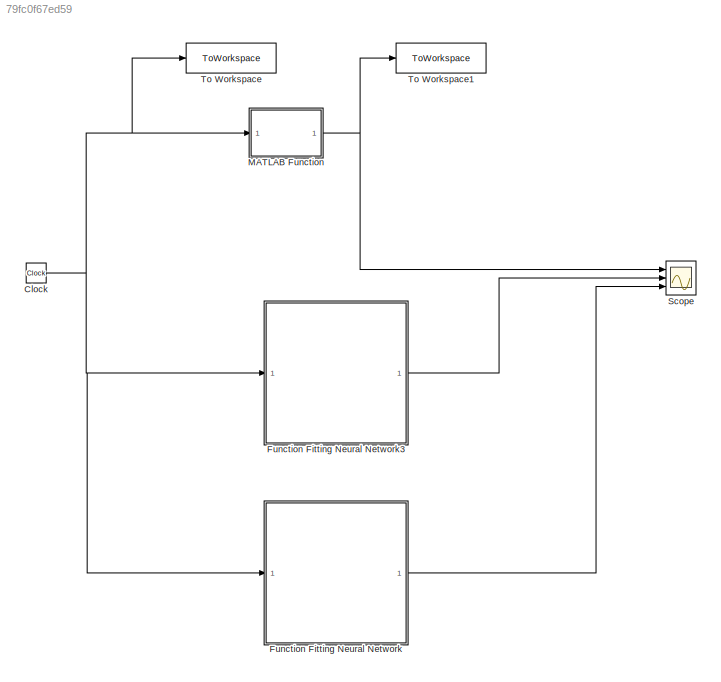
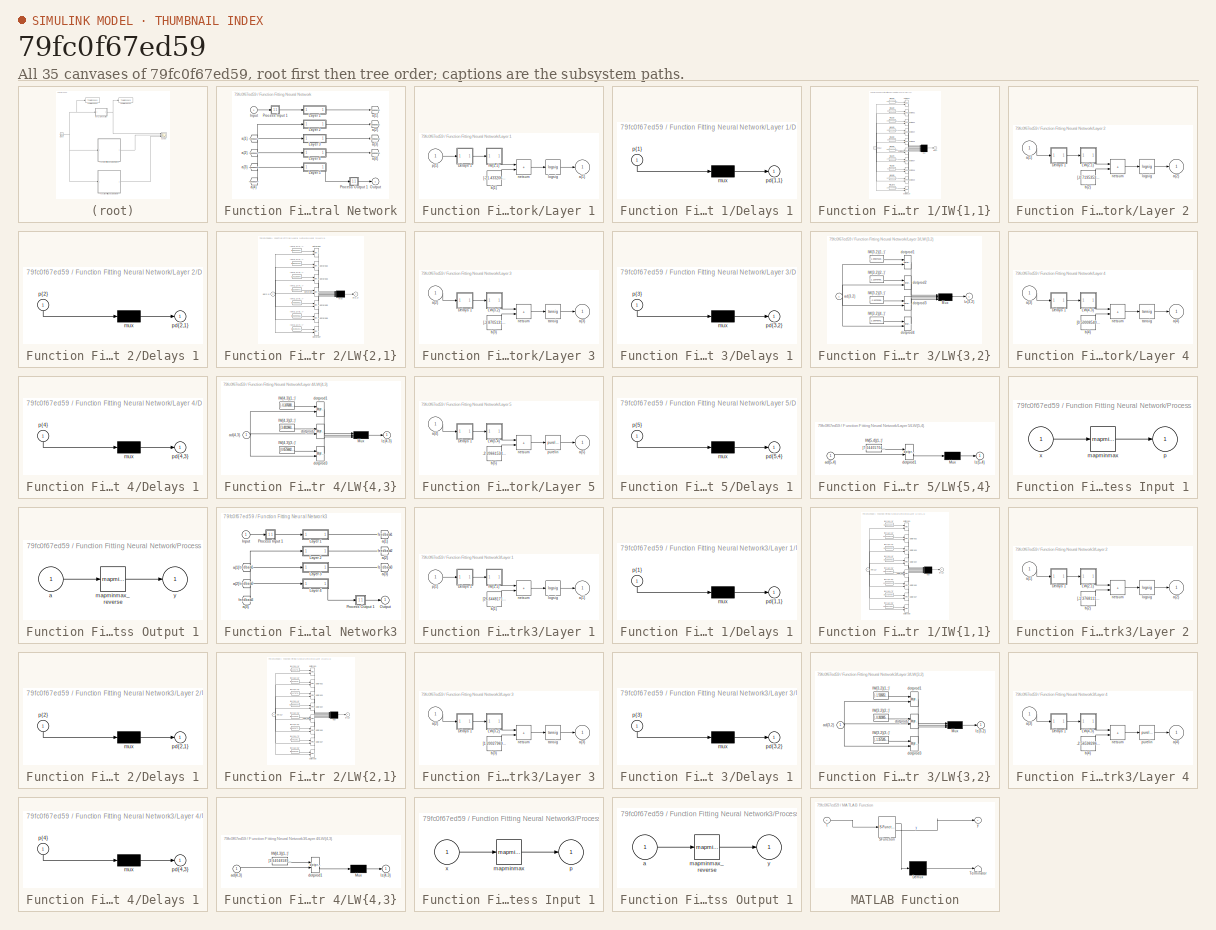
[diagram: thumbnail index - all 35 canvases of the model, root first then tree order]
MODEL slx_79fc0f67ed59
KIND model
CONFIG AbsTol = auto
CONFIG EnableMultiTasking = off
CONFIG FixedStep = 0.01
CONFIG MaxStep = auto
CONFIG MinStep = auto
CONFIG RelTol = 1e-3
CONFIG SampleTimeConstraint = Unconstrained
CONFIG SolverName = ode4
CONFIG StartTime = 0.0
CONFIG StopTime = 20.0
BLOCK [Clock] Clock
BLOCK [SubSystem] Function Fitting Neural Network
  Ports = [1, 1]
  RequestExecContextInheritance = off
BLOCK [From] Function Fitting Neural Network/ a{1} 
  GotoTag = feedback1
BLOCK [From] Function Fitting Neural Network/ a{2} 
  GotoTag = feedback2
BLOCK [From] Function Fitting Neural Network/ a{3} 
  GotoTag = feedback3
BLOCK [From] Function Fitting Neural Network/ a{4} 
  GotoTag = feedback4
BLOCK [Inport] Function Fitting Neural Network/Input
  PortDimensions = 1
BLOCK [SubSystem] Function Fitting Neural Network/Layer 1
  Ports = [1, 1]
  RequestExecContextInheritance = off
BLOCK [SubSystem] Function Fitting Neural Network/Layer 1/Delays 1
  Ports = [1, 1]
  RequestExecContextInheritance = off
BLOCK [Mux] Function Fitting Neural Network/Layer 1/Delays 1/mux
  Inputs = 1
  Ports = [1, 1]
BLOCK [Outport] Function Fitting Neural Network/Layer 1/Delays 1/pd{1,1}
BLOCK [Inport] Function Fitting Neural Network/Layer 1/Delays 1/p{1}
  NameLocation = left
  PortDimensions = 1
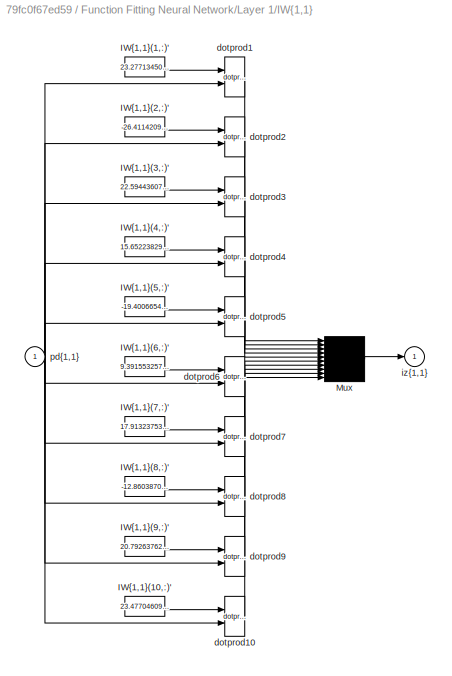
BLOCK [SubSystem] Function Fitting Neural Network/Layer 1/IW{1,1}
  Ports = [1, 1]
  RequestExecContextInheritance = off
BLOCK [Constant] Function Fitting Neural Network/Layer 1/IW{1,1}/IW{1,1}(1,:)'
  Value = 23.277134502735155052732807234860956668853759765625
BLOCK [Constant] Function Fitting Neural Network/Layer 1/IW{1,1}/IW{1,1}(10,:)'
  Value = 23.47704609205544556971290148794651031494140625
BLOCK [Constant] Function Fitting Neural Network/Layer 1/IW{1,1}/IW{1,1}(2,:)'
  Value = -26.411420986498800544950427138246595859527587890625
BLOCK [Constant] Function Fitting Neural Network/Layer 1/IW{1,1}/IW{1,1}(3,:)'
  Value = 22.594436071932914700255423667840659618377685546875
BLOCK [Constant] Function Fitting Neural Network/Layer 1/IW{1,1}/IW{1,1}(4,:)'
  Value = 15.6522382951561898067893707775510847568511962890625
BLOCK [Constant] Function Fitting Neural Network/Layer 1/IW{1,1}/IW{1,1}(5,:)'
  Value = -19.400665441327429761031453381292521953582763671875
BLOCK [Constant] Function Fitting Neural Network/Layer 1/IW{1,1}/IW{1,1}(6,:)'
  Value = 9.3915532570011226454198549618013203144073486328125
BLOCK [Constant] Function Fitting Neural Network/Layer 1/IW{1,1}/IW{1,1}(7,:)'
  Value = 17.913237534890271263066097162663936614990234375
BLOCK [Constant] Function Fitting Neural Network/Layer 1/IW{1,1}/IW{1,1}(8,:)'
  Value = -12.8603870962544295508678260375745594501495361328125
BLOCK [Constant] Function Fitting Neural Network/Layer 1/IW{1,1}/IW{1,1}(9,:)'
  Value = 20.792637620225196570800108020193874835968017578125
BLOCK [Mux] Function Fitting Neural Network/Layer 1/IW{1,1}/Mux
  Inputs = 10
  Ports = [10, 1]
BLOCK [Reference] Function Fitting Neural Network/Layer 1/IW{1,1}/dotprod1  REF=neural/Weight Functions/dotprod
  Ports = [2, 1]
  SourceBlock = neural/Weight Functions/dotprod
  SourceProductBaseCode = NN
  SourceType = DOTPROD
BLOCK [Reference] Function Fitting Neural Network/Layer 1/IW{1,1}/dotprod10  REF=neural/Weight Functions/dotprod
  Ports = [2, 1]
  SourceBlock = neural/Weight Functions/dotprod
  SourceProductBaseCode = NN
  SourceType = DOTPROD
BLOCK [Reference] Function Fitting Neural Network/Layer 1/IW{1,1}/dotprod2  REF=neural/Weight Functions/dotprod
  Ports = [2, 1]
  SourceBlock = neural/Weight Functions/dotprod
  SourceProductBaseCode = NN
  SourceType = DOTPROD
BLOCK [Reference] Function Fitting Neural Network/Layer 1/IW{1,1}/dotprod3  REF=neural/Weight Functions/dotprod
  Ports = [2, 1]
  SourceBlock = neural/Weight Functions/dotprod
  SourceProductBaseCode = NN
  SourceType = DOTPROD
BLOCK [Reference] Function Fitting Neural Network/Layer 1/IW{1,1}/dotprod4  REF=neural/Weight Functions/dotprod
  Ports = [2, 1]
  SourceBlock = neural/Weight Functions/dotprod
  SourceProductBaseCode = NN
  SourceType = DOTPROD
BLOCK [Reference] Function Fitting Neural Network/Layer 1/IW{1,1}/dotprod5  REF=neural/Weight Functions/dotprod
  Ports = [2, 1]
  SourceBlock = neural/Weight Functions/dotprod
  SourceProductBaseCode = NN
  SourceType = DOTPROD
BLOCK [Reference] Function Fitting Neural Network/Layer 1/IW{1,1}/dotprod6  REF=neural/Weight Functions/dotprod
  Ports = [2, 1]
  SourceBlock = neural/Weight Functions/dotprod
  SourceProductBaseCode = NN
  SourceType = DOTPROD
BLOCK [Reference] Function Fitting Neural Network/Layer 1/IW{1,1}/dotprod7  REF=neural/Weight Functions/dotprod
  Ports = [2, 1]
  SourceBlock = neural/Weight Functions/dotprod
  SourceProductBaseCode = NN
  SourceType = DOTPROD
BLOCK [Reference] Function Fitting Neural Network/Layer 1/IW{1,1}/dotprod8  REF=neural/Weight Functions/dotprod
  Ports = [2, 1]
  SourceBlock = neural/Weight Functions/dotprod
  SourceProductBaseCode = NN
  SourceType = DOTPROD
BLOCK [Reference] Function Fitting Neural Network/Layer 1/IW{1,1}/dotprod9  REF=neural/Weight Functions/dotprod
  Ports = [2, 1]
  SourceBlock = neural/Weight Functions/dotprod
  SourceProductBaseCode = NN
  SourceType = DOTPROD
BLOCK [Outport] Function Fitting Neural Network/Layer 1/IW{1,1}/iz{1,1}
BLOCK [Inport] Function Fitting Neural Network/Layer 1/IW{1,1}/pd{1,1}
  PortDimensions = 1
BLOCK [Outport] Function Fitting Neural Network/Layer 1/a{1}
  InitialOutput = [0;0;0;0;0;0;0;0;0;0]
BLOCK [Constant] Function Fitting Neural Network/Layer 1/b{1}
  Value = [-21.433206920465398326314243604429066181182861328125;15.6837883782257438980423103203065693378448486328125;-10.441193294885959375051243114285171031951904296875;-1.1830600892865652529195585884735919535160064697265625;-1.0612586853796608377109578214003704488277435302734375;1.337146372410768169203265642863698303699493408203125;10.780108392073611156547485734336078166961669921875;-9.2026417353347991223...<+132ch>
BLOCK [Reference] Function Fitting Neural Network/Layer 1/logsig  REF=neural/Transfer Functions/logsig
  Ports = [1, 1]
  SourceBlock = neural/Transfer Functions/logsig
  SourceProductBaseCode = NN
  SourceType = LOGSIG
BLOCK [Sum] Function Fitting Neural Network/Layer 1/netsum
  IconShape = rectangular
  InputSameDT = on
  Inputs = 2
  OutDataTypeStr = Inherit: Same as first input
  Ports = [2, 1]
  SaturateOnIntegerOverflow = on
BLOCK [Inport] Function Fitting Neural Network/Layer 1/p{1}
  PortDimensions = 1
BLOCK [SubSystem] Function Fitting Neural Network/Layer 2
  Ports = [1, 1]
  RequestExecContextInheritance = off
BLOCK [SubSystem] Function Fitting Neural Network/Layer 2/Delays 1
  Ports = [1, 1]
  RequestExecContextInheritance = off
BLOCK [Mux] Function Fitting Neural Network/Layer 2/Delays 1/mux
  Inputs = 1
  Ports = [1, 1]
BLOCK [Outport] Function Fitting Neural Network/Layer 2/Delays 1/pd{2,1}
BLOCK [Inport] Function Fitting Neural Network/Layer 2/Delays 1/p{2}
  NameLocation = left
  PortDimensions = 10
BLOCK [SubSystem] Function Fitting Neural Network/Layer 2/LW{2,1}
  Ports = [1, 1]
  RequestExecContextInheritance = off
BLOCK [Constant] Function Fitting Neural Network/Layer 2/LW{2,1}/IW{2,1}(1,:)'
  Value = [2.350421578040545522725324190105311572551727294921875;1.451300580397248740638360686716623604297637939453125;-0.9199507030625111436705765299848280847072601318359375;1.6758342343024861254008328614872880280017852783203125;-3.283599931718857778406572833773680031299591064453125;-5.16152741757049238202625929261557757854461669921875;0.1757685202127516055359279789627180434763431549072265625;-3.7149128965...<+153ch>
BLOCK [Constant] Function Fitting Neural Network/Layer 2/LW{2,1}/IW{2,1}(2,:)'
  Value = [1.8823279418081992897526788510731421411037445068359375;-0.465857894824131257838217834432725794613361358642578125;-4.41069375938105157075597162474878132343292236328125;8.8700695186918192547409489634446799755096435546875;0.05306674711865032312285705984322703443467617034912109375;0.2269208508768193188753770073162741027772426605224609375;2.280590611213982210614403811632655560970306396484375;2.6150272...<+155ch>
BLOCK [Constant] Function Fitting Neural Network/Layer 2/LW{2,1}/IW{2,1}(3,:)'
  Value = [1.7018606421207351786506478674709796905517578125;-1.5985857921278887605609497768455184996128082275390625;-2.035847173659039999193964831647463142871856689453125;2.88218842608853886844144653878174722194671630859375;-6.11115874472133402406370805692858994007110595703125;1.909986252901814562932258922955952584743499755859375;-2.723554817881005174484698727610521018505096435546875;1.600627384397439900709...<+137ch>
BLOCK [Constant] Function Fitting Neural Network/Layer 2/LW{2,1}/IW{2,1}(4,:)'
  Value = [3.815556725800062221054531619301997125148773193359375;-3.1644676790149066647472864133305847644805908203125;-1.183708955574640508956463236245326697826385498046875;-2.254320689829345969457108367350883781909942626953125;-7.46332693547167647096785003668628633022308349609375;-2.09808207678152758290934798424132168292999267578125;-9.0803722538828264276844492997042834758758544921875;13.745482627225156235...<+142ch>
BLOCK [Constant] Function Fitting Neural Network/Layer 2/LW{2,1}/IW{2,1}(5,:)'
  Value = [3.7688900233720321608643644140101969242095947265625;-0.6403914617748249771267410324071533977985382080078125;0.856319213967454917479926734813489019870758056640625;1.8313975346333943861054649460129439830780029296875;-2.005454282743410754363821979495696723461151123046875;-4.38766498924002146253542377962730824947357177734375;-3.564828752906631148533733721706084907054901123046875;-6.913747809628194573...<+141ch>
BLOCK [Constant] Function Fitting Neural Network/Layer 2/LW{2,1}/IW{2,1}(6,:)'
  Value = [0.408909667377094498963430169169441796839237213134765625;4.83938285358232889166174572892487049102783203125;-2.6370027229920918188099676626734435558319091796875;-0.7484871870729417064893596034380607306957244873046875;1.8995317572143239903681433133897371590137481689453125;-1.3350229659524026626371551174088381230831146240234375;0.7370545782960593594879128431784920394420623779296875;3.234185393291054...<+138ch>
BLOCK [Constant] Function Fitting Neural Network/Layer 2/LW{2,1}/IW{2,1}(7,:)'
  Value = [1.8128121143816311455765344362589530646800994873046875;2.317506185920605421557638692320324480533599853515625;0.54450855427327748969901222153566777706146240234375;2.570286684316660075211302682873792946338653564453125;-1.297872213126778806469019400537945330142974853515625;-1.0982240107115861516007271347916685044765472412109375;12.4361703440751423244137185974977910518646240234375;6.65922643595589036...<+141ch>
BLOCK [Mux] Function Fitting Neural Network/Layer 2/LW{2,1}/Mux
  Inputs = 7
  Ports = [7, 1]
BLOCK [Inport] Function Fitting Neural Network/Layer 2/LW{2,1}/ad{2,1}
  PortDimensions = 10
BLOCK [Reference] Function Fitting Neural Network/Layer 2/LW{2,1}/dotprod1  REF=neural/Weight Functions/dotprod
  Ports = [2, 1]
  SourceBlock = neural/Weight Functions/dotprod
  SourceProductBaseCode = NN
  SourceType = DOTPROD
BLOCK [Reference] Function Fitting Neural Network/Layer 2/LW{2,1}/dotprod2  REF=neural/Weight Functions/dotprod
  Ports = [2, 1]
  SourceBlock = neural/Weight Functions/dotprod
  SourceProductBaseCode = NN
  SourceType = DOTPROD
BLOCK [Reference] Function Fitting Neural Network/Layer 2/LW{2,1}/dotprod3  REF=neural/Weight Functions/dotprod
  Ports = [2, 1]
  SourceBlock = neural/Weight Functions/dotprod
  SourceProductBaseCode = NN
  SourceType = DOTPROD
BLOCK [Reference] Function Fitting Neural Network/Layer 2/LW{2,1}/dotprod4  REF=neural/Weight Functions/dotprod
  Ports = [2, 1]
  SourceBlock = neural/Weight Functions/dotprod
  SourceProductBaseCode = NN
  SourceType = DOTPROD
BLOCK [Reference] Function Fitting Neural Network/Layer 2/LW{2,1}/dotprod5  REF=neural/Weight Functions/dotprod
  Ports = [2, 1]
  SourceBlock = neural/Weight Functions/dotprod
  SourceProductBaseCode = NN
  SourceType = DOTPROD
BLOCK [Reference] Function Fitting Neural Network/Layer 2/LW{2,1}/dotprod6  REF=neural/Weight Functions/dotprod
  Ports = [2, 1]
  SourceBlock = neural/Weight Functions/dotprod
  SourceProductBaseCode = NN
  SourceType = DOTPROD
BLOCK [Reference] Function Fitting Neural Network/Layer 2/LW{2,1}/dotprod7  REF=neural/Weight Functions/dotprod
  Ports = [2, 1]
  SourceBlock = neural/Weight Functions/dotprod
  SourceProductBaseCode = NN
  SourceType = DOTPROD
BLOCK [Outport] Function Fitting Neural Network/Layer 2/LW{2,1}/lz{2,1}
BLOCK [Inport] Function Fitting Neural Network/Layer 2/a{1} 
  PortDimensions = 10
BLOCK [Outport] Function Fitting Neural Network/Layer 2/a{2}
  InitialOutput = [0;0;0;0;0;0;0]
BLOCK [Constant] Function Fitting Neural Network/Layer 2/b{2}
  Value = [-0.71953533617200360339438702794723212718963623046875;-6.91133706971976291555392890586517751216888427734375;-0.73244147335433129608617264239001087844371795654296875;-4.82320986915466232147764458204619586467742919921875;-1.6061604830402809174216827159398235380649566650390625;-2.627959854707784703720108154811896383762359619140625;-1.9369343382109269757762604058370925486087799072265625]
BLOCK [Reference] Function Fitting Neural Network/Layer 2/logsig  REF=neural/Transfer Functions/logsig
  Ports = [1, 1]
  SourceBlock = neural/Transfer Functions/logsig
  SourceProductBaseCode = NN
  SourceType = LOGSIG
BLOCK [Sum] Function Fitting Neural Network/Layer 2/netsum
  IconShape = rectangular
  InputSameDT = on
  Inputs = 2
  OutDataTypeStr = Inherit: Same as first input
  Ports = [2, 1]
  SaturateOnIntegerOverflow = on
BLOCK [SubSystem] Function Fitting Neural Network/Layer 3
  Ports = [1, 1]
  RequestExecContextInheritance = off
BLOCK [SubSystem] Function Fitting Neural Network/Layer 3/Delays 1
  Ports = [1, 1]
  RequestExecContextInheritance = off
BLOCK [Mux] Function Fitting Neural Network/Layer 3/Delays 1/mux
  Inputs = 1
  Ports = [1, 1]
BLOCK [Outport] Function Fitting Neural Network/Layer 3/Delays 1/pd{3,2}
BLOCK [Inport] Function Fitting Neural Network/Layer 3/Delays 1/p{3}
  NameLocation = left
  PortDimensions = 7
BLOCK [SubSystem] Function Fitting Neural Network/Layer 3/LW{3,2}
  Ports = [1, 1]
  RequestExecContextInheritance = off
BLOCK [Constant] Function Fitting Neural Network/Layer 3/LW{3,2}/IW{3,2}(1,:)'
  Value = [1.89807628564586661212842955137602984905242919921875;-0.62822601878224204607903402575175277888774871826171875;-0.5013404643207923783165824715979397296905517578125;2.06706512427990585223369635059498250484466552734375;-7.175751919448462246009512455202639102935791015625;-1.3982043095720284586747084176749922335147857666015625;-2.178481549686031915058492813841439783573150634765625]
BLOCK [Constant] Function Fitting Neural Network/Layer 3/LW{3,2}/IW{3,2}(2,:)'
  Value = [1.1267876542397825545549494563601911067962646484375;-0.608781874057461980243033394799567759037017822265625;-0.4399344496084582889494640767225064337253570556640625;-0.0966156141603600471245982816981268115341663360595703125;-2.391850368547941751984353686566464602947235107421875;-0.43562794862502818293847894892678596079349517822265625;-1.1655204675205965703099764141370542347431182861328125]
BLOCK [Constant] Function Fitting Neural Network/Layer 3/LW{3,2}/IW{3,2}(3,:)'
  Value = [-2.607529921326908972645242101862095296382904052734375;-3.551751910479796325859069838770665228366851806640625;1.504745368587204978894078521989285945892333984375;6.37905401880589462138004819280467927455902099609375;-1.42887948968418410089498138404451310634613037109375;0.271262628598654298439640797369065694510936737060546875;2.22431879729682346891195265925489366054534912109375]
BLOCK [Constant] Function Fitting Neural Network/Layer 3/LW{3,2}/IW{3,2}(4,:)'
  Value = [2.29646642482035812093954518786631524562835693359375;1.85441777027991339110712942783720791339874267578125;1.41986906190736750232872509513981640338897705078125;-7.195446385555936075206773239187896251678466796875;-3.444088911829766175287659280002117156982421875;2.152738735825248550526112012448720633983612060546875;2.0395757916297849732245595077984035015106201171875]
BLOCK [Mux] Function Fitting Neural Network/Layer 3/LW{3,2}/Mux
  Ports = [4, 1]
BLOCK [Inport] Function Fitting Neural Network/Layer 3/LW{3,2}/ad{3,2}
  PortDimensions = 7
BLOCK [Reference] Function Fitting Neural Network/Layer 3/LW{3,2}/dotprod1  REF=neural/Weight Functions/dotprod
  Ports = [2, 1]
  SourceBlock = neural/Weight Functions/dotprod
  SourceProductBaseCode = NN
  SourceType = DOTPROD
BLOCK [Reference] Function Fitting Neural Network/Layer 3/LW{3,2}/dotprod2  REF=neural/Weight Functions/dotprod
  Ports = [2, 1]
  SourceBlock = neural/Weight Functions/dotprod
  SourceProductBaseCode = NN
  SourceType = DOTPROD
BLOCK [Reference] Function Fitting Neural Network/Layer 3/LW{3,2}/dotprod3  REF=neural/Weight Functions/dotprod
  Ports = [2, 1]
  SourceBlock = neural/Weight Functions/dotprod
  SourceProductBaseCode = NN
  SourceType = DOTPROD
BLOCK [Reference] Function Fitting Neural Network/Layer 3/LW{3,2}/dotprod4  REF=neural/Weight Functions/dotprod
  Ports = [2, 1]
  SourceBlock = neural/Weight Functions/dotprod
  SourceProductBaseCode = NN
  SourceType = DOTPROD
BLOCK [Outport] Function Fitting Neural Network/Layer 3/LW{3,2}/lz{3,2}
BLOCK [Inport] Function Fitting Neural Network/Layer 3/a{2} 
  PortDimensions = 7
BLOCK [Outport] Function Fitting Neural Network/Layer 3/a{3}
  InitialOutput = [0;0;0;0]
BLOCK [Constant] Function Fitting Neural Network/Layer 3/b{3}
  Value = [-3.870513161822924264043876974028535187244415283203125;-4.65044081455123237134330338449217379093170166015625;-0.135493054883853381031855178662226535379886627197265625;-1.381859484398356929801821024739183485507965087890625]
BLOCK [Sum] Function Fitting Neural Network/Layer 3/netsum
  IconShape = rectangular
  InputSameDT = on
  Inputs = 2
  OutDataTypeStr = Inherit: Same as first input
  Ports = [2, 1]
  SaturateOnIntegerOverflow = on
BLOCK [Reference] Function Fitting Neural Network/Layer 3/tansig  REF=neural/Transfer Functions/tansig
  Ports = [1, 1]
  SourceBlock = neural/Transfer Functions/tansig
  SourceProductBaseCode = NN
  SourceType = TANSIG
BLOCK [SubSystem] Function Fitting Neural Network/Layer 4
  Ports = [1, 1]
  RequestExecContextInheritance = off
BLOCK [SubSystem] Function Fitting Neural Network/Layer 4/Delays 1
  Ports = [1, 1]
  RequestExecContextInheritance = off
BLOCK [Mux] Function Fitting Neural Network/Layer 4/Delays 1/mux
  Inputs = 1
  Ports = [1, 1]
BLOCK [Outport] Function Fitting Neural Network/Layer 4/Delays 1/pd{4,3}
BLOCK [Inport] Function Fitting Neural Network/Layer 4/Delays 1/p{4}
  NameLocation = left
  PortDimensions = 4
BLOCK [SubSystem] Function Fitting Neural Network/Layer 4/LW{4,3}
  Ports = [1, 1]
  RequestExecContextInheritance = off
BLOCK [Constant] Function Fitting Neural Network/Layer 4/LW{4,3}/IW{4,3}(1,:)'
  Value = [-0.2476088881688650322754341459585702978074550628662109375;-1.94465274148249900321161476313136518001556396484375;-3.823473904033445336381191737018525600433349609375;1.477098014792539881767652332200668752193450927734375]
BLOCK [Constant] Function Fitting Neural Network/Layer 4/LW{4,3}/IW{4,3}(2,:)'
  Value = [3.48119661511200551018418991588987410068511962890625;0.60104131917905367910037739420658908784389495849609375;2.438139247312091750785612020990811288356781005859375;-3.545006973206547673527211372856982052326202392578125]
BLOCK [Constant] Function Fitting Neural Network/Layer 4/LW{4,3}/IW{4,3}(3,:)'
  Value = [0.85756842856254700269147406288539059460163116455078125;-0.3225724842757122790004586931900121271610260009765625;-1.073564696418217945250717093585990369319915771484375;-1.4903610826479340989436650488642044365406036376953125]
BLOCK [Mux] Function Fitting Neural Network/Layer 4/LW{4,3}/Mux
  Inputs = 3
  Ports = [3, 1]
BLOCK [Inport] Function Fitting Neural Network/Layer 4/LW{4,3}/ad{4,3}
  PortDimensions = 4
BLOCK [Reference] Function Fitting Neural Network/Layer 4/LW{4,3}/dotprod1  REF=neural/Weight Functions/dotprod
  Ports = [2, 1]
  SourceBlock = neural/Weight Functions/dotprod
  SourceProductBaseCode = NN
  SourceType = DOTPROD
BLOCK [Reference] Function Fitting Neural Network/Layer 4/LW{4,3}/dotprod2  REF=neural/Weight Functions/dotprod
  Ports = [2, 1]
  SourceBlock = neural/Weight Functions/dotprod
  SourceProductBaseCode = NN
  SourceType = DOTPROD
BLOCK [Reference] Function Fitting Neural Network/Layer 4/LW{4,3}/dotprod3  REF=neural/Weight Functions/dotprod
  Ports = [2, 1]
  SourceBlock = neural/Weight Functions/dotprod
  SourceProductBaseCode = NN
  SourceType = DOTPROD
BLOCK [Outport] Function Fitting Neural Network/Layer 4/LW{4,3}/lz{4,3}
BLOCK [Inport] Function Fitting Neural Network/Layer 4/a{3} 
  PortDimensions = 4
BLOCK [Outport] Function Fitting Neural Network/Layer 4/a{4}
  InitialOutput = [0;0;0]
BLOCK [Constant] Function Fitting Neural Network/Layer 4/b{4}
  Value = [0.50008540767746689770234524985426105558872222900390625;-2.890166079937009246947354768053628504276275634765625;1.9255353525754264065739107536501251161098480224609375]
BLOCK [Sum] Function Fitting Neural Network/Layer 4/netsum
  IconShape = rectangular
  InputSameDT = on
  Inputs = 2
  OutDataTypeStr = Inherit: Same as first input
  Ports = [2, 1]
  SaturateOnIntegerOverflow = on
BLOCK [Reference] Function Fitting Neural Network/Layer 4/tansig  REF=neural/Transfer Functions/tansig
  Ports = [1, 1]
  SourceBlock = neural/Transfer Functions/tansig
  SourceProductBaseCode = NN
  SourceType = TANSIG
BLOCK [SubSystem] Function Fitting Neural Network/Layer 5
  Ports = [1, 1]
  RequestExecContextInheritance = off
BLOCK [SubSystem] Function Fitting Neural Network/Layer 5/Delays 1
  Ports = [1, 1]
  RequestExecContextInheritance = off
BLOCK [Mux] Function Fitting Neural Network/Layer 5/Delays 1/mux
  Inputs = 1
  Ports = [1, 1]
BLOCK [Outport] Function Fitting Neural Network/Layer 5/Delays 1/pd{5,4}
BLOCK [Inport] Function Fitting Neural Network/Layer 5/Delays 1/p{5}
  NameLocation = left
  PortDimensions = 3
BLOCK [SubSystem] Function Fitting Neural Network/Layer 5/LW{5,4}
  Ports = [1, 1]
  RequestExecContextInheritance = off
BLOCK [Constant] Function Fitting Neural Network/Layer 5/LW{5,4}/IW{5,4}(1,:)'
  Value = [7.0440570451335187129870973876677453517913818359375;-3.774234734046885808567139974911697208881378173828125;5.2217549088134784796011444996111094951629638671875]
BLOCK [Mux] Function Fitting Neural Network/Layer 5/LW{5,4}/Mux
  Inputs = 1
  Ports = [1, 1]
BLOCK [Inport] Function Fitting Neural Network/Layer 5/LW{5,4}/ad{5,4}
  PortDimensions = 3
BLOCK [Reference] Function Fitting Neural Network/Layer 5/LW{5,4}/dotprod1  REF=neural/Weight Functions/dotprod
  Ports = [2, 1]
  SourceBlock = neural/Weight Functions/dotprod
  SourceProductBaseCode = NN
  SourceType = DOTPROD
BLOCK [Outport] Function Fitting Neural Network/Layer 5/LW{5,4}/lz{5,4}
BLOCK [Inport] Function Fitting Neural Network/Layer 5/a{4} 
  PortDimensions = 3
BLOCK [Outport] Function Fitting Neural Network/Layer 5/a{5}
  InitialOutput = 0
BLOCK [Constant] Function Fitting Neural Network/Layer 5/b{5}
  Value = -2.206615342908722965376000502146780490875244140625
BLOCK [Sum] Function Fitting Neural Network/Layer 5/netsum
  IconShape = rectangular
  InputSameDT = on
  Inputs = 2
  OutDataTypeStr = Inherit: Same as first input
  Ports = [2, 1]
  SaturateOnIntegerOverflow = on
BLOCK [Reference] Function Fitting Neural Network/Layer 5/purelin  REF=neural/Transfer Functions/purelin
  Ports = [1, 1]
  SourceBlock = neural/Transfer Functions/purelin
  SourceProductBaseCode = NN
  SourceType = PURELIN
BLOCK [Outport] Function Fitting Neural Network/Output
  InitialOutput = 0
BLOCK [SubSystem] Function Fitting Neural Network/Process Input 1
  Ports = [1, 1]
  RequestExecContextInheritance = off
BLOCK [Reference] Function Fitting Neural Network/Process Input 1/mapminmax  REF=neural/Processing Functions/mapminmax
  Ports = [1, 1]
  SourceBlock = neural/Processing Functions/mapminmax
  SourceProductBaseCode = NN
  SourceType = MAPMINMAX Preprocess
BLOCK [Outport] Function Fitting Neural Network/Process Input 1/p
  PortDimensions = 1
BLOCK [Inport] Function Fitting Neural Network/Process Input 1/x
  PortDimensions = 1
BLOCK [SubSystem] Function Fitting Neural Network/Process Output 1
  Ports = [1, 1]
  RequestExecContextInheritance = off
BLOCK [Inport] Function Fitting Neural Network/Process Output 1/a
  PortDimensions = 1
BLOCK [Reference] Function Fitting Neural Network/Process Output 1/mapminmax_reverse  REF=neural/Processing Functions/mapminmax_reverse
  Ports = [1, 1]
  SourceBlock = neural/Processing Functions/mapminmax_reverse
  SourceProductBaseCode = NN
  SourceType = MAPMINMAX Reverse Process
BLOCK [Outport] Function Fitting Neural Network/Process Output 1/y
  PortDimensions = 1
BLOCK [Goto] Function Fitting Neural Network/a{1}
  GotoTag = feedback1
BLOCK [Goto] Function Fitting Neural Network/a{2}
  GotoTag = feedback2
BLOCK [Goto] Function Fitting Neural Network/a{3}
  GotoTag = feedback3
BLOCK [Goto] Function Fitting Neural Network/a{4}
  GotoTag = feedback4
BLOCK [SubSystem] Function Fitting Neural Network3
  Ports = [1, 1]
  RequestExecContextInheritance = off
BLOCK [From] Function Fitting Neural Network3/ a{1} 
  GotoTag = feedback1
BLOCK [From] Function Fitting Neural Network3/ a{2} 
  GotoTag = feedback2
BLOCK [From] Function Fitting Neural Network3/ a{3} 
  GotoTag = feedback3
BLOCK [Inport] Function Fitting Neural Network3/Input
  PortDimensions = 1
BLOCK [SubSystem] Function Fitting Neural Network3/Layer 1
  Ports = [1, 1]
  RequestExecContextInheritance = off
BLOCK [SubSystem] Function Fitting Neural Network3/Layer 1/Delays 1
  Ports = [1, 1]
  RequestExecContextInheritance = off
BLOCK [Mux] Function Fitting Neural Network3/Layer 1/Delays 1/mux
  Inputs = 1
  Ports = [1, 1]
BLOCK [Outport] Function Fitting Neural Network3/Layer 1/Delays 1/pd{1,1}
BLOCK [Inport] Function Fitting Neural Network3/Layer 1/Delays 1/p{1}
  NameLocation = left
  PortDimensions = 1
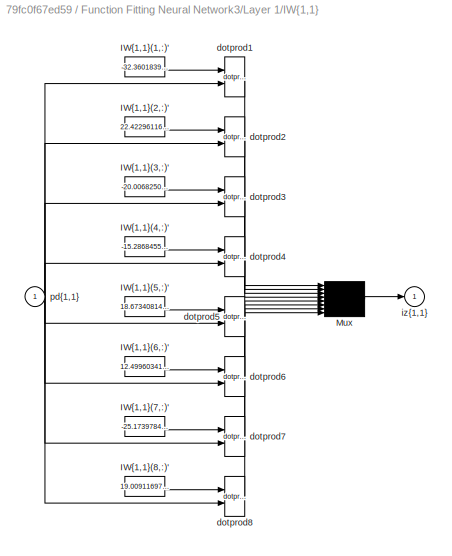
BLOCK [SubSystem] Function Fitting Neural Network3/Layer 1/IW{1,1}
  Ports = [1, 1]
  RequestExecContextInheritance = off
BLOCK [Constant] Function Fitting Neural Network3/Layer 1/IW{1,1}/IW{1,1}(1,:)'
  Value = -32.36018395701734107205993495881557464599609375
BLOCK [Constant] Function Fitting Neural Network3/Layer 1/IW{1,1}/IW{1,1}(2,:)'
  Value = 22.422961169043642115639158873818814754486083984375
BLOCK [Constant] Function Fitting Neural Network3/Layer 1/IW{1,1}/IW{1,1}(3,:)'
  Value = -20.006825014122046724196479772217571735382080078125
BLOCK [Constant] Function Fitting Neural Network3/Layer 1/IW{1,1}/IW{1,1}(4,:)'
  Value = -15.2868455403590086660869928891770541667938232421875
BLOCK [Constant] Function Fitting Neural Network3/Layer 1/IW{1,1}/IW{1,1}(5,:)'
  Value = 18.673408141719445296757839969359338283538818359375
BLOCK [Constant] Function Fitting Neural Network3/Layer 1/IW{1,1}/IW{1,1}(6,:)'
  Value = 12.499603410701382699699024669826030731201171875
BLOCK [Constant] Function Fitting Neural Network3/Layer 1/IW{1,1}/IW{1,1}(7,:)'
  Value = -25.173978462335259820292776566930115222930908203125
BLOCK [Constant] Function Fitting Neural Network3/Layer 1/IW{1,1}/IW{1,1}(8,:)'
  Value = 19.009116973172179854145724675618112087249755859375
BLOCK [Mux] Function Fitting Neural Network3/Layer 1/IW{1,1}/Mux
  Inputs = 8
  Ports = [8, 1]
BLOCK [Reference] Function Fitting Neural Network3/Layer 1/IW{1,1}/dotprod1  REF=neural/Weight Functions/dotprod
  Ports = [2, 1]
  SourceBlock = neural/Weight Functions/dotprod
  SourceProductBaseCode = NN
  SourceType = DOTPROD
BLOCK [Reference] Function Fitting Neural Network3/Layer 1/IW{1,1}/dotprod2  REF=neural/Weight Functions/dotprod
  Ports = [2, 1]
  SourceBlock = neural/Weight Functions/dotprod
  SourceProductBaseCode = NN
  SourceType = DOTPROD
BLOCK [Reference] Function Fitting Neural Network3/Layer 1/IW{1,1}/dotprod3  REF=neural/Weight Functions/dotprod
  Ports = [2, 1]
  SourceBlock = neural/Weight Functions/dotprod
  SourceProductBaseCode = NN
  SourceType = DOTPROD
BLOCK [Reference] Function Fitting Neural Network3/Layer 1/IW{1,1}/dotprod4  REF=neural/Weight Functions/dotprod
  Ports = [2, 1]
  SourceBlock = neural/Weight Functions/dotprod
  SourceProductBaseCode = NN
  SourceType = DOTPROD
BLOCK [Reference] Function Fitting Neural Network3/Layer 1/IW{1,1}/dotprod5  REF=neural/Weight Functions/dotprod
  Ports = [2, 1]
  SourceBlock = neural/Weight Functions/dotprod
  SourceProductBaseCode = NN
  SourceType = DOTPROD
BLOCK [Reference] Function Fitting Neural Network3/Layer 1/IW{1,1}/dotprod6  REF=neural/Weight Functions/dotprod
  Ports = [2, 1]
  SourceBlock = neural/Weight Functions/dotprod
  SourceProductBaseCode = NN
  SourceType = DOTPROD
BLOCK [Reference] Function Fitting Neural Network3/Layer 1/IW{1,1}/dotprod7  REF=neural/Weight Functions/dotprod
  Ports = [2, 1]
  SourceBlock = neural/Weight Functions/dotprod
  SourceProductBaseCode = NN
  SourceType = DOTPROD
BLOCK [Reference] Function Fitting Neural Network3/Layer 1/IW{1,1}/dotprod8  REF=neural/Weight Functions/dotprod
  Ports = [2, 1]
  SourceBlock = neural/Weight Functions/dotprod
  SourceProductBaseCode = NN
  SourceType = DOTPROD
BLOCK [Outport] Function Fitting Neural Network3/Layer 1/IW{1,1}/iz{1,1}
BLOCK [Inport] Function Fitting Neural Network3/Layer 1/IW{1,1}/pd{1,1}
  PortDimensions = 1
BLOCK [Outport] Function Fitting Neural Network3/Layer 1/a{1}
  InitialOutput = [0;0;0;0;0;0;0;0]
BLOCK [Constant] Function Fitting Neural Network3/Layer 1/b{1}
  Value = [26.644817110072484211968912859447300434112548828125;-16.330598852083557659398138639517128467559814453125;9.7888589076717575920838498859666287899017333984375;1.6659475300284254384308724183938466012477874755859375;2.826860498531455601067818861338309943675994873046875;7.633070726471604672269677394069731235504150390625;-16.33359231773096809092749026603996753692626953125;18.533305928689301822487323079...<+20ch>
BLOCK [Reference] Function Fitting Neural Network3/Layer 1/logsig  REF=neural/Transfer Functions/logsig
  Ports = [1, 1]
  SourceBlock = neural/Transfer Functions/logsig
  SourceProductBaseCode = NN
  SourceType = LOGSIG
BLOCK [Sum] Function Fitting Neural Network3/Layer 1/netsum
  IconShape = rectangular
  InputSameDT = on
  Inputs = 2
  OutDataTypeStr = Inherit: Same as first input
  Ports = [2, 1]
  SaturateOnIntegerOverflow = on
BLOCK [Inport] Function Fitting Neural Network3/Layer 1/p{1}
  PortDimensions = 1
BLOCK [SubSystem] Function Fitting Neural Network3/Layer 2
  Ports = [1, 1]
  RequestExecContextInheritance = off
BLOCK [SubSystem] Function Fitting Neural Network3/Layer 2/Delays 1
  Ports = [1, 1]
  RequestExecContextInheritance = off
BLOCK [Mux] Function Fitting Neural Network3/Layer 2/Delays 1/mux
  Inputs = 1
  Ports = [1, 1]
BLOCK [Outport] Function Fitting Neural Network3/Layer 2/Delays 1/pd{2,1}
BLOCK [Inport] Function Fitting Neural Network3/Layer 2/Delays 1/p{2}
  NameLocation = left
  PortDimensions = 8
BLOCK [SubSystem] Function Fitting Neural Network3/Layer 2/LW{2,1}
  Ports = [1, 1]
  RequestExecContextInheritance = off
BLOCK [Constant] Function Fitting Neural Network3/Layer 2/LW{2,1}/IW{2,1}(1,:)'
  Value = [-1.1133176047453001711318165689590387046337127685546875;-0.949297920185824484207159912330098450183868408203125;1.276560657076921234676092353765852749347686767578125;0.91394151907665344136688645448884926736354827880859375;-0.9626645557745650005898596646147780120372772216796875;0.91388058460250032322136348739149980247020721435546875;2.73709013050322536031444542459212243556976318359375;6.38791085308...<+40ch>
BLOCK [Constant] Function Fitting Neural Network3/Layer 2/LW{2,1}/IW{2,1}(2,:)'
  Value = [-2.781691637828868746140642542741261422634124755859375;-2.439994539774160475786857205093838274478912353515625;-4.17853779892017751507182765635661780834197998046875;4.12031479979957016013258908060379326343536376953125;-0.282568072401549186256630719071836210787296295166015625;-0.0942303742213530248772457298400695435702800750732421875;3.641009240415370218357793419272638857364654541015625;-2.63105407...<+44ch>
BLOCK [Constant] Function Fitting Neural Network3/Layer 2/LW{2,1}/IW{2,1}(3,:)'
  Value = [-3.44178766780752898313266996410675346851348876953125;-2.06251702551618709691183539689518511295318603515625;0.05482728574662280862650476365161011926829814910888671875;-4.99695146633700293392621460952796041965484619140625;-1.5175012751748162553866450252826325595378875732421875;-2.966950389791039643938574954518117010593414306640625;11.1832011742244237240129223209805786609649658203125;-1.74506634325...<+42ch>
BLOCK [Constant] Function Fitting Neural Network3/Layer 2/LW{2,1}/IW{2,1}(4,:)'
  Value = [1.0858652004489244280449611324002034962177276611328125;1.0183708102578308274388518839259631931781768798828125;3.96109339469471866124195003067143261432647705078125;-3.940862776057249217132039120770059525966644287109375;0.05004763592984097508864493875080370344221591949462890625;-1.3384469148339943611603075623861514031887054443359375;6.05321847831227710656776253017596900463104248046875;-0.5157190423...<+39ch>
BLOCK [Constant] Function Fitting Neural Network3/Layer 2/LW{2,1}/IW{2,1}(5,:)'
  Value = [-0.6120039047713012880791438874439336359500885009765625;-0.23069169048573912039756805825163610279560089111328125;0.57458265837690347677124691472272388637065887451171875;3.35630260130821778119525333750061690807342529296875;-2.3507103841574004121639518416486680507659912109375;7.9222195841943072736057729343883693218231201171875;1.3047493949530994949981277386541478335857391357421875;-0.71446345589497...<+40ch>
BLOCK [Constant] Function Fitting Neural Network3/Layer 2/LW{2,1}/IW{2,1}(6,:)'
  Value = [-1.8680870540578891070282452346873469650745391845703125;-1.1628966281106081215312997301225550472736358642578125;0.95537354874908231305852268633316271007061004638671875;1.818530042098278176609937872854061424732208251953125;-0.54488065382555028737243674186174757778644561767578125;6.147350011245958256722587975673377513885498046875;0.8412898462899141005522096747881732881069183349609375;-5.93617750756...<+40ch>
BLOCK [Constant] Function Fitting Neural Network3/Layer 2/LW{2,1}/IW{2,1}(7,:)'
  Value = [-1.47623513920736826321444823406636714935302734375;-4.15600305050543550322572627919726073741912841796875;3.315276580364411973533833588589914143085479736328125;2.2350186399023836969490730552934110164642333984375;-1.2297222621932542008238442576839588582515716552734375;-0.53287890329687293000660019970382563769817352294921875;-2.318859524606805333490910925320349633693695068359375;2.101322015343825455...<+29ch>
BLOCK [Constant] Function Fitting Neural Network3/Layer 2/LW{2,1}/IW{2,1}(8,:)'
  Value = [-3.009820898887081597194992355071008205413818359375;-2.232834833334983226649228527094237506389617919921875;2.370312466084617764039421672350727021694183349609375;1.3829909429128968145761291452799923717975616455078125;3.295478147961434789436907522031106054782867431640625;4.61851695784206750516887041158042848110198974609375;0.530016329603215208265964974998496472835540771484375;4.94633286920525261365...<+31ch>
BLOCK [Mux] Function Fitting Neural Network3/Layer 2/LW{2,1}/Mux
  Inputs = 8
  Ports = [8, 1]
BLOCK [Inport] Function Fitting Neural Network3/Layer 2/LW{2,1}/ad{2,1}
  PortDimensions = 8
BLOCK [Reference] Function Fitting Neural Network3/Layer 2/LW{2,1}/dotprod1  REF=neural/Weight Functions/dotprod
  Ports = [2, 1]
  SourceBlock = neural/Weight Functions/dotprod
  SourceProductBaseCode = NN
  SourceType = DOTPROD
BLOCK [Reference] Function Fitting Neural Network3/Layer 2/LW{2,1}/dotprod2  REF=neural/Weight Functions/dotprod
  Ports = [2, 1]
  SourceBlock = neural/Weight Functions/dotprod
  SourceProductBaseCode = NN
  SourceType = DOTPROD
BLOCK [Reference] Function Fitting Neural Network3/Layer 2/LW{2,1}/dotprod3  REF=neural/Weight Functions/dotprod
  Ports = [2, 1]
  SourceBlock = neural/Weight Functions/dotprod
  SourceProductBaseCode = NN
  SourceType = DOTPROD
BLOCK [Reference] Function Fitting Neural Network3/Layer 2/LW{2,1}/dotprod4  REF=neural/Weight Functions/dotprod
  Ports = [2, 1]
  SourceBlock = neural/Weight Functions/dotprod
  SourceProductBaseCode = NN
  SourceType = DOTPROD
BLOCK [Reference] Function Fitting Neural Network3/Layer 2/LW{2,1}/dotprod5  REF=neural/Weight Functions/dotprod
  Ports = [2, 1]
  SourceBlock = neural/Weight Functions/dotprod
  SourceProductBaseCode = NN
  SourceType = DOTPROD
BLOCK [Reference] Function Fitting Neural Network3/Layer 2/LW{2,1}/dotprod6  REF=neural/Weight Functions/dotprod
  Ports = [2, 1]
  SourceBlock = neural/Weight Functions/dotprod
  SourceProductBaseCode = NN
  SourceType = DOTPROD
BLOCK [Reference] Function Fitting Neural Network3/Layer 2/LW{2,1}/dotprod7  REF=neural/Weight Functions/dotprod
  Ports = [2, 1]
  SourceBlock = neural/Weight Functions/dotprod
  SourceProductBaseCode = NN
  SourceType = DOTPROD
BLOCK [Reference] Function Fitting Neural Network3/Layer 2/LW{2,1}/dotprod8  REF=neural/Weight Functions/dotprod
  Ports = [2, 1]
  SourceBlock = neural/Weight Functions/dotprod
  SourceProductBaseCode = NN
  SourceType = DOTPROD
BLOCK [Outport] Function Fitting Neural Network3/Layer 2/LW{2,1}/lz{2,1}
BLOCK [Inport] Function Fitting Neural Network3/Layer 2/a{1} 
  PortDimensions = 8
BLOCK [Outport] Function Fitting Neural Network3/Layer 2/a{2}
  InitialOutput = [0;0;0;0;0;0;0;0]
BLOCK [Constant] Function Fitting Neural Network3/Layer 2/b{2}
  Value = [-1.37681114643560942312205952475778758525848388671875;2.04397928637330483780942813609726727008819580078125;7.99938215250640904940837572212330996990203857421875;-2.688608803783706147072507519624195992946624755859375;-5.203612958829079815359364147298038005828857421875;-4.239772011640365434459454263560473918914794921875;-1.8456508182676099050212314978125505149364471435546875;-8.228646310839557997951...<+27ch>
BLOCK [Reference] Function Fitting Neural Network3/Layer 2/logsig  REF=neural/Transfer Functions/logsig
  Ports = [1, 1]
  SourceBlock = neural/Transfer Functions/logsig
  SourceProductBaseCode = NN
  SourceType = LOGSIG
BLOCK [Sum] Function Fitting Neural Network3/Layer 2/netsum
  IconShape = rectangular
  InputSameDT = on
  Inputs = 2
  OutDataTypeStr = Inherit: Same as first input
  Ports = [2, 1]
  SaturateOnIntegerOverflow = on
BLOCK [SubSystem] Function Fitting Neural Network3/Layer 3
  Ports = [1, 1]
  RequestExecContextInheritance = off
BLOCK [SubSystem] Function Fitting Neural Network3/Layer 3/Delays 1
  Ports = [1, 1]
  RequestExecContextInheritance = off
BLOCK [Mux] Function Fitting Neural Network3/Layer 3/Delays 1/mux
  Inputs = 1
  Ports = [1, 1]
BLOCK [Outport] Function Fitting Neural Network3/Layer 3/Delays 1/pd{3,2}
BLOCK [Inport] Function Fitting Neural Network3/Layer 3/Delays 1/p{3}
  NameLocation = left
  PortDimensions = 8
BLOCK [SubSystem] Function Fitting Neural Network3/Layer 3/LW{3,2}
  Ports = [1, 1]
  RequestExecContextInheritance = off
BLOCK [Constant] Function Fitting Neural Network3/Layer 3/LW{3,2}/IW{3,2}(1,:)'
  Value = [-1.592685189730455252998808646225370466709136962890625;3.3461695632799095534437583410181105136871337890625;-0.4630745314654642896812219987623393535614013671875;1.0461231951976779352975199799402616918087005615234375;2.15757665736739934203569646342657506465911865234375;2.43246086197752919844106145319528877735137939453125;-1.6498333985013093894167468533851206302642822265625;-0.0931399822751091538419...<+35ch>
BLOCK [Constant] Function Fitting Neural Network3/Layer 3/LW{3,2}/IW{3,2}(2,:)'
  Value = [-0.28238059729157871657889700145460665225982666015625;-0.0541676418644731760831945166501100175082683563232421875;1.63254253027528495323394963634200394153594970703125;1.3068942991820857724150073408964090049266815185546875;0.937664208307693147759209750802256166934967041015625;1.181426420918735953335954036447219550609588623046875;-0.339964167201749323243831213403609581291675567626953125;-2.930331657...<+41ch>
BLOCK [Constant] Function Fitting Neural Network3/Layer 3/LW{3,2}/IW{3,2}(3,:)'
  Value = [-1.35752853755126778878548066131770610809326171875;-1.023529443401745009367687089252285659313201904296875;1.17553762491419799829373005195520818233489990234375;-1.5195891888931161162190619506873190402984619140625;-1.4361176616033761721524797394522465765476226806640625;-1.123817788829677422057784497155807912349700927734375;1.2295988991988269223298857468762435019016265869140625;0.0431197503924841823...<+38ch>
BLOCK [Mux] Function Fitting Neural Network3/Layer 3/LW{3,2}/Mux
  Inputs = 3
  Ports = [3, 1]
BLOCK [Inport] Function Fitting Neural Network3/Layer 3/LW{3,2}/ad{3,2}
  PortDimensions = 8
BLOCK [Reference] Function Fitting Neural Network3/Layer 3/LW{3,2}/dotprod1  REF=neural/Weight Functions/dotprod
  Ports = [2, 1]
  SourceBlock = neural/Weight Functions/dotprod
  SourceProductBaseCode = NN
  SourceType = DOTPROD
BLOCK [Reference] Function Fitting Neural Network3/Layer 3/LW{3,2}/dotprod2  REF=neural/Weight Functions/dotprod
  Ports = [2, 1]
  SourceBlock = neural/Weight Functions/dotprod
  SourceProductBaseCode = NN
  SourceType = DOTPROD
BLOCK [Reference] Function Fitting Neural Network3/Layer 3/LW{3,2}/dotprod3  REF=neural/Weight Functions/dotprod
  Ports = [2, 1]
  SourceBlock = neural/Weight Functions/dotprod
  SourceProductBaseCode = NN
  SourceType = DOTPROD
BLOCK [Outport] Function Fitting Neural Network3/Layer 3/LW{3,2}/lz{3,2}
BLOCK [Inport] Function Fitting Neural Network3/Layer 3/a{2} 
  PortDimensions = 8
BLOCK [Outport] Function Fitting Neural Network3/Layer 3/a{3}
  InitialOutput = [0;0;0]
BLOCK [Constant] Function Fitting Neural Network3/Layer 3/b{3}
  Value = [1.2002796914702253960882671890431083738803863525390625;-2.125558174979314429720034240745007991790771484375;-0.60636576945637477020767391877598129212856292724609375]
BLOCK [Sum] Function Fitting Neural Network3/Layer 3/netsum
  IconShape = rectangular
  InputSameDT = on
  Inputs = 2
  OutDataTypeStr = Inherit: Same as first input
  Ports = [2, 1]
  SaturateOnIntegerOverflow = on
BLOCK [Reference] Function Fitting Neural Network3/Layer 3/tansig  REF=neural/Transfer Functions/tansig
  Ports = [1, 1]
  SourceBlock = neural/Transfer Functions/tansig
  SourceProductBaseCode = NN
  SourceType = TANSIG
BLOCK [SubSystem] Function Fitting Neural Network3/Layer 4
  Ports = [1, 1]
  RequestExecContextInheritance = off
BLOCK [SubSystem] Function Fitting Neural Network3/Layer 4/Delays 1
  Ports = [1, 1]
  RequestExecContextInheritance = off
BLOCK [Mux] Function Fitting Neural Network3/Layer 4/Delays 1/mux
  Inputs = 1
  Ports = [1, 1]
BLOCK [Outport] Function Fitting Neural Network3/Layer 4/Delays 1/pd{4,3}
BLOCK [Inport] Function Fitting Neural Network3/Layer 4/Delays 1/p{4}
  NameLocation = left
  PortDimensions = 3
BLOCK [SubSystem] Function Fitting Neural Network3/Layer 4/LW{4,3}
  Ports = [1, 1]
  RequestExecContextInheritance = off
BLOCK [Constant] Function Fitting Neural Network3/Layer 4/LW{4,3}/IW{4,3}(1,:)'
  Value = [3.640485890230308552162341584335081279277801513671875;-3.1298504049127444659461616538465023040771484375;0.538282050082796725831713047227822244167327880859375]
BLOCK [Mux] Function Fitting Neural Network3/Layer 4/LW{4,3}/Mux
  Inputs = 1
  Ports = [1, 1]
BLOCK [Inport] Function Fitting Neural Network3/Layer 4/LW{4,3}/ad{4,3}
  PortDimensions = 3
BLOCK [Reference] Function Fitting Neural Network3/Layer 4/LW{4,3}/dotprod1  REF=neural/Weight Functions/dotprod
  Ports = [2, 1]
  SourceBlock = neural/Weight Functions/dotprod
  SourceProductBaseCode = NN
  SourceType = DOTPROD
BLOCK [Outport] Function Fitting Neural Network3/Layer 4/LW{4,3}/lz{4,3}
BLOCK [Inport] Function Fitting Neural Network3/Layer 4/a{3} 
  PortDimensions = 3
BLOCK [Outport] Function Fitting Neural Network3/Layer 4/a{4}
  InitialOutput = 0
BLOCK [Constant] Function Fitting Neural Network3/Layer 4/b{4}
  Value = -2.56598286699760702589401262230239808559417724609375
BLOCK [Sum] Function Fitting Neural Network3/Layer 4/netsum
  IconShape = rectangular
  InputSameDT = on
  Inputs = 2
  OutDataTypeStr = Inherit: Same as first input
  Ports = [2, 1]
  SaturateOnIntegerOverflow = on
BLOCK [Reference] Function Fitting Neural Network3/Layer 4/purelin  REF=neural/Transfer Functions/purelin
  Ports = [1, 1]
  SourceBlock = neural/Transfer Functions/purelin
  SourceProductBaseCode = NN
  SourceType = PURELIN
BLOCK [Outport] Function Fitting Neural Network3/Output
  InitialOutput = 0
BLOCK [SubSystem] Function Fitting Neural Network3/Process Input 1
  Ports = [1, 1]
  RequestExecContextInheritance = off
BLOCK [Reference] Function Fitting Neural Network3/Process Input 1/mapminmax  REF=neural/Processing Functions/mapminmax
  Ports = [1, 1]
  SourceBlock = neural/Processing Functions/mapminmax
  SourceProductBaseCode = NN
  SourceType = MAPMINMAX Preprocess
BLOCK [Outport] Function Fitting Neural Network3/Process Input 1/p
  PortDimensions = 1
BLOCK [Inport] Function Fitting Neural Network3/Process Input 1/x
  PortDimensions = 1
BLOCK [SubSystem] Function Fitting Neural Network3/Process Output 1
  Ports = [1, 1]
  RequestExecContextInheritance = off
BLOCK [Inport] Function Fitting Neural Network3/Process Output 1/a
  PortDimensions = 1
BLOCK [Reference] Function Fitting Neural Network3/Process Output 1/mapminmax_reverse  REF=neural/Processing Functions/mapminmax_reverse
  Ports = [1, 1]
  SourceBlock = neural/Processing Functions/mapminmax_reverse
  SourceProductBaseCode = NN
  SourceType = MAPMINMAX Reverse Process
BLOCK [Outport] Function Fitting Neural Network3/Process Output 1/y
  PortDimensions = 1
BLOCK [Goto] Function Fitting Neural Network3/a{1}
  GotoTag = feedback1
BLOCK [Goto] Function Fitting Neural Network3/a{2}
  GotoTag = feedback2
BLOCK [Goto] Function Fitting Neural Network3/a{3}
  GotoTag = feedback3
BLOCK [SubSystem] MATLAB Function
  ErrorFcn = Stateflow.Translate.translate
  PermitHierarchicalResolution = ExplicitOnly
  Ports = [1, 1]
  RequestExecContextInheritance = off
  SFBlockType = MATLAB Function
  TreatAsAtomicUnit = on
BLOCK [Demux] MATLAB Function/ Demux 
  Outputs = 1
  Ports = [1, 1]
BLOCK [S-Function] MATLAB Function/ SFunction 
  EnableBusSupport = on
  FunctionName = sf_sfun
  PortCounts = [1 2]
  Ports = [1, 2]
  SFcnIsStateOwnerBlock = off
  SFunctionDeploymentMode = off
  Tag = Stateflow S-Function 2
BLOCK [Terminator] MATLAB Function/ Terminator 
BLOCK [Inport] MATLAB Function/t
BLOCK [Outport] MATLAB Function/y
BLOCK [Scope] Scope
  Floating = off
  NumInputPorts = 3
  Ports = [3]
  ScopeSpecificationString = Simulink.scopes.TimeScopeBlockCfg('CurrentConfiguration', extmgr.ConfigurationSet(extmgr.Configuration('Core','General UI',true),extmgr.Configuration('Core','Source UI',true),extmgr.Configuration('Sources','WiredSimulink',true),extmgr.Configuration('Visuals','Time Domain',true),extmgr.Configuration('Tools','Plot Navigation',true),extmgr.Configuration('Tools','Measurements',true)),'Version','2022a'...<+1ch>
BLOCK [ToWorkspace] To Workspace
  FixptAsFi = on
  MaxDataPoints = inf
  Ports = [1]
  SampleTime = -1
  Save2DSignal = 2-D array (concatenate along first dimension)
  VariableName = entrada
BLOCK [ToWorkspace] To Workspace1
  FixptAsFi = on
  MaxDataPoints = inf
  Ports = [1]
  SampleTime = -1
  Save2DSignal = 2-D array (concatenate along first dimension)
  VariableName = salida
NET Clock:1 -> Function Fitting Neural Network3:1, Function Fitting Neural Network:1, MATLAB Function:1, To Workspace:1
LINE Function Fitting Neural Network/ a{1} :1 -> Function Fitting Neural Network/Layer 2:1
LINE Function Fitting Neural Network/ a{2} :1 -> Function Fitting Neural Network/Layer 3:1
LINE Function Fitting Neural Network/ a{3} :1 -> Function Fitting Neural Network/Layer 4:1
LINE Function Fitting Neural Network/ a{4} :1 -> Function Fitting Neural Network/Layer 5:1
LINE Function Fitting Neural Network/Input:1 -> Function Fitting Neural Network/Process Input 1:1
LINE Function Fitting Neural Network/Layer 1/Delays 1/mux:1 -> Function Fitting Neural Network/Layer 1/Delays 1/pd{1,1}:1
LINE Function Fitting Neural Network/Layer 1/Delays 1/p{1}:1 -> Function Fitting Neural Network/Layer 1/Delays 1/mux:1
LINE Function Fitting Neural Network/Layer 1/Delays 1:1 -> Function Fitting Neural Network/Layer 1/IW{1,1}:1
LINE Function Fitting Neural Network/Layer 1/IW{1,1}/IW{1,1}(1,:)':1 -> Function Fitting Neural Network/Layer 1/IW{1,1}/dotprod1:1
LINE Function Fitting Neural Network/Layer 1/IW{1,1}/IW{1,1}(10,:)':1 -> Function Fitting Neural Network/Layer 1/IW{1,1}/dotprod10:1
LINE Function Fitting Neural Network/Layer 1/IW{1,1}/IW{1,1}(2,:)':1 -> Function Fitting Neural Network/Layer 1/IW{1,1}/dotprod2:1
LINE Function Fitting Neural Network/Layer 1/IW{1,1}/IW{1,1}(3,:)':1 -> Function Fitting Neural Network/Layer 1/IW{1,1}/dotprod3:1
LINE Function Fitting Neural Network/Layer 1/IW{1,1}/IW{1,1}(4,:)':1 -> Function Fitting Neural Network/Layer 1/IW{1,1}/dotprod4:1
LINE Function Fitting Neural Network/Layer 1/IW{1,1}/IW{1,1}(5,:)':1 -> Function Fitting Neural Network/Layer 1/IW{1,1}/dotprod5:1
LINE Function Fitting Neural Network/Layer 1/IW{1,1}/IW{1,1}(6,:)':1 -> Function Fitting Neural Network/Layer 1/IW{1,1}/dotprod6:1
LINE Function Fitting Neural Network/Layer 1/IW{1,1}/IW{1,1}(7,:)':1 -> Function Fitting Neural Network/Layer 1/IW{1,1}/dotprod7:1
LINE Function Fitting Neural Network/Layer 1/IW{1,1}/IW{1,1}(8,:)':1 -> Function Fitting Neural Network/Layer 1/IW{1,1}/dotprod8:1
LINE Function Fitting Neural Network/Layer 1/IW{1,1}/IW{1,1}(9,:)':1 -> Function Fitting Neural Network/Layer 1/IW{1,1}/dotprod9:1
LINE Function Fitting Neural Network/Layer 1/IW{1,1}/Mux:1 -> Function Fitting Neural Network/Layer 1/IW{1,1}/iz{1,1}:1
LINE Function Fitting Neural Network/Layer 1/IW{1,1}/dotprod10:1 -> Function Fitting Neural Network/Layer 1/IW{1,1}/Mux:10
LINE Function Fitting Neural Network/Layer 1/IW{1,1}/dotprod1:1 -> Function Fitting Neural Network/Layer 1/IW{1,1}/Mux:1
LINE Function Fitting Neural Network/Layer 1/IW{1,1}/dotprod2:1 -> Function Fitting Neural Network/Layer 1/IW{1,1}/Mux:2
LINE Function Fitting Neural Network/Layer 1/IW{1,1}/dotprod3:1 -> Function Fitting Neural Network/Layer 1/IW{1,1}/Mux:3
LINE Function Fitting Neural Network/Layer 1/IW{1,1}/dotprod4:1 -> Function Fitting Neural Network/Layer 1/IW{1,1}/Mux:4
LINE Function Fitting Neural Network/Layer 1/IW{1,1}/dotprod5:1 -> Function Fitting Neural Network/Layer 1/IW{1,1}/Mux:5
LINE Function Fitting Neural Network/Layer 1/IW{1,1}/dotprod6:1 -> Function Fitting Neural Network/Layer 1/IW{1,1}/Mux:6
LINE Function Fitting Neural Network/Layer 1/IW{1,1}/dotprod7:1 -> Function Fitting Neural Network/Layer 1/IW{1,1}/Mux:7
LINE Function Fitting Neural Network/Layer 1/IW{1,1}/dotprod8:1 -> Function Fitting Neural Network/Layer 1/IW{1,1}/Mux:8
LINE Function Fitting Neural Network/Layer 1/IW{1,1}/dotprod9:1 -> Function Fitting Neural Network/Layer 1/IW{1,1}/Mux:9
NET Function Fitting Neural Network/Layer 1/IW{1,1}/pd{1,1}:1 -> Function Fitting Neural Network/Layer 1/IW{1,1}/dotprod10:2, Function Fitting Neural Network/Layer 1/IW{1,1}/dotprod1:2, Function Fitting Neural Network/Layer 1/IW{1,1}/dotprod2:2, Function Fitting Neural Network/Layer 1/IW{1,1}/dotprod3:2, Function Fitting Neural Network/Layer 1/IW{1,1}/dotprod4:2, Function Fitting Neural Network/Layer 1/IW{1,1}/dotprod5:2, Function Fitting Neural Network/Layer 1/IW{1,1}/dotprod6:2, Function Fitting Neural Network/Layer 1/IW{1,1}/dotprod7:2, Function Fitting Neural Network/Layer 1/IW{1,1}/dotprod8:2, Function Fitting Neural Network/Layer 1/IW{1,1}/dotprod9:2
LINE Function Fitting Neural Network/Layer 1/IW{1,1}:1 -> Function Fitting Neural Network/Layer 1/netsum:1
LINE Function Fitting Neural Network/Layer 1/b{1}:1 -> Function Fitting Neural Network/Layer 1/netsum:2
LINE Function Fitting Neural Network/Layer 1/logsig:1 -> Function Fitting Neural Network/Layer 1/a{1}:1
LINE Function Fitting Neural Network/Layer 1/netsum:1 -> Function Fitting Neural Network/Layer 1/logsig:1
LINE Function Fitting Neural Network/Layer 1/p{1}:1 -> Function Fitting Neural Network/Layer 1/Delays 1:1
LINE Function Fitting Neural Network/Layer 1:1 -> Function Fitting Neural Network/a{1}:1
LINE Function Fitting Neural Network/Layer 2/Delays 1/mux:1 -> Function Fitting Neural Network/Layer 2/Delays 1/pd{2,1}:1
LINE Function Fitting Neural Network/Layer 2/Delays 1/p{2}:1 -> Function Fitting Neural Network/Layer 2/Delays 1/mux:1
LINE Function Fitting Neural Network/Layer 2/Delays 1:1 -> Function Fitting Neural Network/Layer 2/LW{2,1}:1
LINE Function Fitting Neural Network/Layer 2/LW{2,1}/IW{2,1}(1,:)':1 -> Function Fitting Neural Network/Layer 2/LW{2,1}/dotprod1:1
LINE Function Fitting Neural Network/Layer 2/LW{2,1}/IW{2,1}(2,:)':1 -> Function Fitting Neural Network/Layer 2/LW{2,1}/dotprod2:1
LINE Function Fitting Neural Network/Layer 2/LW{2,1}/IW{2,1}(3,:)':1 -> Function Fitting Neural Network/Layer 2/LW{2,1}/dotprod3:1
LINE Function Fitting Neural Network/Layer 2/LW{2,1}/IW{2,1}(4,:)':1 -> Function Fitting Neural Network/Layer 2/LW{2,1}/dotprod4:1
LINE Function Fitting Neural Network/Layer 2/LW{2,1}/IW{2,1}(5,:)':1 -> Function Fitting Neural Network/Layer 2/LW{2,1}/dotprod5:1
LINE Function Fitting Neural Network/Layer 2/LW{2,1}/IW{2,1}(6,:)':1 -> Function Fitting Neural Network/Layer 2/LW{2,1}/dotprod6:1
LINE Function Fitting Neural Network/Layer 2/LW{2,1}/IW{2,1}(7,:)':1 -> Function Fitting Neural Network/Layer 2/LW{2,1}/dotprod7:1
LINE Function Fitting Neural Network/Layer 2/LW{2,1}/Mux:1 -> Function Fitting Neural Network/Layer 2/LW{2,1}/lz{2,1}:1
NET Function Fitting Neural Network/Layer 2/LW{2,1}/ad{2,1}:1 -> Function Fitting Neural Network/Layer 2/LW{2,1}/dotprod1:2, Function Fitting Neural Network/Layer 2/LW{2,1}/dotprod2:2, Function Fitting Neural Network/Layer 2/LW{2,1}/dotprod3:2, Function Fitting Neural Network/Layer 2/LW{2,1}/dotprod4:2, Function Fitting Neural Network/Layer 2/LW{2,1}/dotprod5:2, Function Fitting Neural Network/Layer 2/LW{2,1}/dotprod6:2, Function Fitting Neural Network/Layer 2/LW{2,1}/dotprod7:2
LINE Function Fitting Neural Network/Layer 2/LW{2,1}/dotprod1:1 -> Function Fitting Neural Network/Layer 2/LW{2,1}/Mux:1
LINE Function Fitting Neural Network/Layer 2/LW{2,1}/dotprod2:1 -> Function Fitting Neural Network/Layer 2/LW{2,1}/Mux:2
LINE Function Fitting Neural Network/Layer 2/LW{2,1}/dotprod3:1 -> Function Fitting Neural Network/Layer 2/LW{2,1}/Mux:3
LINE Function Fitting Neural Network/Layer 2/LW{2,1}/dotprod4:1 -> Function Fitting Neural Network/Layer 2/LW{2,1}/Mux:4
LINE Function Fitting Neural Network/Layer 2/LW{2,1}/dotprod5:1 -> Function Fitting Neural Network/Layer 2/LW{2,1}/Mux:5
LINE Function Fitting Neural Network/Layer 2/LW{2,1}/dotprod6:1 -> Function Fitting Neural Network/Layer 2/LW{2,1}/Mux:6
LINE Function Fitting Neural Network/Layer 2/LW{2,1}/dotprod7:1 -> Function Fitting Neural Network/Layer 2/LW{2,1}/Mux:7
LINE Function Fitting Neural Network/Layer 2/LW{2,1}:1 -> Function Fitting Neural Network/Layer 2/netsum:1
LINE Function Fitting Neural Network/Layer 2/a{1} :1 -> Function Fitting Neural Network/Layer 2/Delays 1:1
LINE Function Fitting Neural Network/Layer 2/b{2}:1 -> Function Fitting Neural Network/Layer 2/netsum:2
LINE Function Fitting Neural Network/Layer 2/logsig:1 -> Function Fitting Neural Network/Layer 2/a{2}:1
LINE Function Fitting Neural Network/Layer 2/netsum:1 -> Function Fitting Neural Network/Layer 2/logsig:1
LINE Function Fitting Neural Network/Layer 2:1 -> Function Fitting Neural Network/a{2}:1
LINE Function Fitting Neural Network/Layer 3/Delays 1/mux:1 -> Function Fitting Neural Network/Layer 3/Delays 1/pd{3,2}:1
LINE Function Fitting Neural Network/Layer 3/Delays 1/p{3}:1 -> Function Fitting Neural Network/Layer 3/Delays 1/mux:1
LINE Function Fitting Neural Network/Layer 3/Delays 1:1 -> Function Fitting Neural Network/Layer 3/LW{3,2}:1
LINE Function Fitting Neural Network/Layer 3/LW{3,2}/IW{3,2}(1,:)':1 -> Function Fitting Neural Network/Layer 3/LW{3,2}/dotprod1:1
LINE Function Fitting Neural Network/Layer 3/LW{3,2}/IW{3,2}(2,:)':1 -> Function Fitting Neural Network/Layer 3/LW{3,2}/dotprod2:1
LINE Function Fitting Neural Network/Layer 3/LW{3,2}/IW{3,2}(3,:)':1 -> Function Fitting Neural Network/Layer 3/LW{3,2}/dotprod3:1
LINE Function Fitting Neural Network/Layer 3/LW{3,2}/IW{3,2}(4,:)':1 -> Function Fitting Neural Network/Layer 3/LW{3,2}/dotprod4:1
LINE Function Fitting Neural Network/Layer 3/LW{3,2}/Mux:1 -> Function Fitting Neural Network/Layer 3/LW{3,2}/lz{3,2}:1
NET Function Fitting Neural Network/Layer 3/LW{3,2}/ad{3,2}:1 -> Function Fitting Neural Network/Layer 3/LW{3,2}/dotprod1:2, Function Fitting Neural Network/Layer 3/LW{3,2}/dotprod2:2, Function Fitting Neural Network/Layer 3/LW{3,2}/dotprod3:2, Function Fitting Neural Network/Layer 3/LW{3,2}/dotprod4:2
LINE Function Fitting Neural Network/Layer 3/LW{3,2}/dotprod1:1 -> Function Fitting Neural Network/Layer 3/LW{3,2}/Mux:1
LINE Function Fitting Neural Network/Layer 3/LW{3,2}/dotprod2:1 -> Function Fitting Neural Network/Layer 3/LW{3,2}/Mux:2
LINE Function Fitting Neural Network/Layer 3/LW{3,2}/dotprod3:1 -> Function Fitting Neural Network/Layer 3/LW{3,2}/Mux:3
LINE Function Fitting Neural Network/Layer 3/LW{3,2}/dotprod4:1 -> Function Fitting Neural Network/Layer 3/LW{3,2}/Mux:4
LINE Function Fitting Neural Network/Layer 3/LW{3,2}:1 -> Function Fitting Neural Network/Layer 3/netsum:1
LINE Function Fitting Neural Network/Layer 3/a{2} :1 -> Function Fitting Neural Network/Layer 3/Delays 1:1
LINE Function Fitting Neural Network/Layer 3/b{3}:1 -> Function Fitting Neural Network/Layer 3/netsum:2
LINE Function Fitting Neural Network/Layer 3/netsum:1 -> Function Fitting Neural Network/Layer 3/tansig:1
LINE Function Fitting Neural Network/Layer 3/tansig:1 -> Function Fitting Neural Network/Layer 3/a{3}:1
LINE Function Fitting Neural Network/Layer 3:1 -> Function Fitting Neural Network/a{3}:1
LINE Function Fitting Neural Network/Layer 4/Delays 1/mux:1 -> Function Fitting Neural Network/Layer 4/Delays 1/pd{4,3}:1
LINE Function Fitting Neural Network/Layer 4/Delays 1/p{4}:1 -> Function Fitting Neural Network/Layer 4/Delays 1/mux:1
LINE Function Fitting Neural Network/Layer 4/Delays 1:1 -> Function Fitting Neural Network/Layer 4/LW{4,3}:1
LINE Function Fitting Neural Network/Layer 4/LW{4,3}/IW{4,3}(1,:)':1 -> Function Fitting Neural Network/Layer 4/LW{4,3}/dotprod1:1
LINE Function Fitting Neural Network/Layer 4/LW{4,3}/IW{4,3}(2,:)':1 -> Function Fitting Neural Network/Layer 4/LW{4,3}/dotprod2:1
LINE Function Fitting Neural Network/Layer 4/LW{4,3}/IW{4,3}(3,:)':1 -> Function Fitting Neural Network/Layer 4/LW{4,3}/dotprod3:1
LINE Function Fitting Neural Network/Layer 4/LW{4,3}/Mux:1 -> Function Fitting Neural Network/Layer 4/LW{4,3}/lz{4,3}:1
NET Function Fitting Neural Network/Layer 4/LW{4,3}/ad{4,3}:1 -> Function Fitting Neural Network/Layer 4/LW{4,3}/dotprod1:2, Function Fitting Neural Network/Layer 4/LW{4,3}/dotprod2:2, Function Fitting Neural Network/Layer 4/LW{4,3}/dotprod3:2
LINE Function Fitting Neural Network/Layer 4/LW{4,3}/dotprod1:1 -> Function Fitting Neural Network/Layer 4/LW{4,3}/Mux:1
LINE Function Fitting Neural Network/Layer 4/LW{4,3}/dotprod2:1 -> Function Fitting Neural Network/Layer 4/LW{4,3}/Mux:2
LINE Function Fitting Neural Network/Layer 4/LW{4,3}/dotprod3:1 -> Function Fitting Neural Network/Layer 4/LW{4,3}/Mux:3
LINE Function Fitting Neural Network/Layer 4/LW{4,3}:1 -> Function Fitting Neural Network/Layer 4/netsum:1
LINE Function Fitting Neural Network/Layer 4/a{3} :1 -> Function Fitting Neural Network/Layer 4/Delays 1:1
LINE Function Fitting Neural Network/Layer 4/b{4}:1 -> Function Fitting Neural Network/Layer 4/netsum:2
LINE Function Fitting Neural Network/Layer 4/netsum:1 -> Function Fitting Neural Network/Layer 4/tansig:1
LINE Function Fitting Neural Network/Layer 4/tansig:1 -> Function Fitting Neural Network/Layer 4/a{4}:1
LINE Function Fitting Neural Network/Layer 4:1 -> Function Fitting Neural Network/a{4}:1
LINE Function Fitting Neural Network/Layer 5/Delays 1/mux:1 -> Function Fitting Neural Network/Layer 5/Delays 1/pd{5,4}:1
LINE Function Fitting Neural Network/Layer 5/Delays 1/p{5}:1 -> Function Fitting Neural Network/Layer 5/Delays 1/mux:1
LINE Function Fitting Neural Network/Layer 5/Delays 1:1 -> Function Fitting Neural Network/Layer 5/LW{5,4}:1
LINE Function Fitting Neural Network/Layer 5/LW{5,4}/IW{5,4}(1,:)':1 -> Function Fitting Neural Network/Layer 5/LW{5,4}/dotprod1:1
LINE Function Fitting Neural Network/Layer 5/LW{5,4}/Mux:1 -> Function Fitting Neural Network/Layer 5/LW{5,4}/lz{5,4}:1
LINE Function Fitting Neural Network/Layer 5/LW{5,4}/ad{5,4}:1 -> Function Fitting Neural Network/Layer 5/LW{5,4}/dotprod1:2
LINE Function Fitting Neural Network/Layer 5/LW{5,4}/dotprod1:1 -> Function Fitting Neural Network/Layer 5/LW{5,4}/Mux:1
LINE Function Fitting Neural Network/Layer 5/LW{5,4}:1 -> Function Fitting Neural Network/Layer 5/netsum:1
LINE Function Fitting Neural Network/Layer 5/a{4} :1 -> Function Fitting Neural Network/Layer 5/Delays 1:1
LINE Function Fitting Neural Network/Layer 5/b{5}:1 -> Function Fitting Neural Network/Layer 5/netsum:2
LINE Function Fitting Neural Network/Layer 5/netsum:1 -> Function Fitting Neural Network/Layer 5/purelin:1
LINE Function Fitting Neural Network/Layer 5/purelin:1 -> Function Fitting Neural Network/Layer 5/a{5}:1
LINE Function Fitting Neural Network/Layer 5:1 -> Function Fitting Neural Network/Process Output 1:1
LINE Function Fitting Neural Network/Process Input 1/mapminmax:1 -> Function Fitting Neural Network/Process Input 1/p:1
LINE Function Fitting Neural Network/Process Input 1/x:1 -> Function Fitting Neural Network/Process Input 1/mapminmax:1
LINE Function Fitting Neural Network/Process Input 1:1 -> Function Fitting Neural Network/Layer 1:1
LINE Function Fitting Neural Network/Process Output 1/a:1 -> Function Fitting Neural Network/Process Output 1/mapminmax_reverse:1
LINE Function Fitting Neural Network/Process Output 1/mapminmax_reverse:1 -> Function Fitting Neural Network/Process Output 1/y:1
LINE Function Fitting Neural Network/Process Output 1:1 -> Function Fitting Neural Network/Output:1
LINE Function Fitting Neural Network3/ a{1} :1 -> Function Fitting Neural Network3/Layer 2:1
LINE Function Fitting Neural Network3/ a{2} :1 -> Function Fitting Neural Network3/Layer 3:1
LINE Function Fitting Neural Network3/ a{3} :1 -> Function Fitting Neural Network3/Layer 4:1
LINE Function Fitting Neural Network3/Input:1 -> Function Fitting Neural Network3/Process Input 1:1
LINE Function Fitting Neural Network3/Layer 1/Delays 1/mux:1 -> Function Fitting Neural Network3/Layer 1/Delays 1/pd{1,1}:1
LINE Function Fitting Neural Network3/Layer 1/Delays 1/p{1}:1 -> Function Fitting Neural Network3/Layer 1/Delays 1/mux:1
LINE Function Fitting Neural Network3/Layer 1/Delays 1:1 -> Function Fitting Neural Network3/Layer 1/IW{1,1}:1
LINE Function Fitting Neural Network3/Layer 1/IW{1,1}/IW{1,1}(1,:)':1 -> Function Fitting Neural Network3/Layer 1/IW{1,1}/dotprod1:1
LINE Function Fitting Neural Network3/Layer 1/IW{1,1}/IW{1,1}(2,:)':1 -> Function Fitting Neural Network3/Layer 1/IW{1,1}/dotprod2:1
LINE Function Fitting Neural Network3/Layer 1/IW{1,1}/IW{1,1}(3,:)':1 -> Function Fitting Neural Network3/Layer 1/IW{1,1}/dotprod3:1
LINE Function Fitting Neural Network3/Layer 1/IW{1,1}/IW{1,1}(4,:)':1 -> Function Fitting Neural Network3/Layer 1/IW{1,1}/dotprod4:1
LINE Function Fitting Neural Network3/Layer 1/IW{1,1}/IW{1,1}(5,:)':1 -> Function Fitting Neural Network3/Layer 1/IW{1,1}/dotprod5:1
LINE Function Fitting Neural Network3/Layer 1/IW{1,1}/IW{1,1}(6,:)':1 -> Function Fitting Neural Network3/Layer 1/IW{1,1}/dotprod6:1
LINE Function Fitting Neural Network3/Layer 1/IW{1,1}/IW{1,1}(7,:)':1 -> Function Fitting Neural Network3/Layer 1/IW{1,1}/dotprod7:1
LINE Function Fitting Neural Network3/Layer 1/IW{1,1}/IW{1,1}(8,:)':1 -> Function Fitting Neural Network3/Layer 1/IW{1,1}/dotprod8:1
LINE Function Fitting Neural Network3/Layer 1/IW{1,1}/Mux:1 -> Function Fitting Neural Network3/Layer 1/IW{1,1}/iz{1,1}:1
LINE Function Fitting Neural Network3/Layer 1/IW{1,1}/dotprod1:1 -> Function Fitting Neural Network3/Layer 1/IW{1,1}/Mux:1
LINE Function Fitting Neural Network3/Layer 1/IW{1,1}/dotprod2:1 -> Function Fitting Neural Network3/Layer 1/IW{1,1}/Mux:2
LINE Function Fitting Neural Network3/Layer 1/IW{1,1}/dotprod3:1 -> Function Fitting Neural Network3/Layer 1/IW{1,1}/Mux:3
LINE Function Fitting Neural Network3/Layer 1/IW{1,1}/dotprod4:1 -> Function Fitting Neural Network3/Layer 1/IW{1,1}/Mux:4
LINE Function Fitting Neural Network3/Layer 1/IW{1,1}/dotprod5:1 -> Function Fitting Neural Network3/Layer 1/IW{1,1}/Mux:5
LINE Function Fitting Neural Network3/Layer 1/IW{1,1}/dotprod6:1 -> Function Fitting Neural Network3/Layer 1/IW{1,1}/Mux:6
LINE Function Fitting Neural Network3/Layer 1/IW{1,1}/dotprod7:1 -> Function Fitting Neural Network3/Layer 1/IW{1,1}/Mux:7
LINE Function Fitting Neural Network3/Layer 1/IW{1,1}/dotprod8:1 -> Function Fitting Neural Network3/Layer 1/IW{1,1}/Mux:8
NET Function Fitting Neural Network3/Layer 1/IW{1,1}/pd{1,1}:1 -> Function Fitting Neural Network3/Layer 1/IW{1,1}/dotprod1:2, Function Fitting Neural Network3/Layer 1/IW{1,1}/dotprod2:2, Function Fitting Neural Network3/Layer 1/IW{1,1}/dotprod3:2, Function Fitting Neural Network3/Layer 1/IW{1,1}/dotprod4:2, Function Fitting Neural Network3/Layer 1/IW{1,1}/dotprod5:2, Function Fitting Neural Network3/Layer 1/IW{1,1}/dotprod6:2, Function Fitting Neural Network3/Layer 1/IW{1,1}/dotprod7:2, Function Fitting Neural Network3/Layer 1/IW{1,1}/dotprod8:2
LINE Function Fitting Neural Network3/Layer 1/IW{1,1}:1 -> Function Fitting Neural Network3/Layer 1/netsum:1
LINE Function Fitting Neural Network3/Layer 1/b{1}:1 -> Function Fitting Neural Network3/Layer 1/netsum:2
LINE Function Fitting Neural Network3/Layer 1/logsig:1 -> Function Fitting Neural Network3/Layer 1/a{1}:1
LINE Function Fitting Neural Network3/Layer 1/netsum:1 -> Function Fitting Neural Network3/Layer 1/logsig:1
LINE Function Fitting Neural Network3/Layer 1/p{1}:1 -> Function Fitting Neural Network3/Layer 1/Delays 1:1
LINE Function Fitting Neural Network3/Layer 1:1 -> Function Fitting Neural Network3/a{1}:1
LINE Function Fitting Neural Network3/Layer 2/Delays 1/mux:1 -> Function Fitting Neural Network3/Layer 2/Delays 1/pd{2,1}:1
LINE Function Fitting Neural Network3/Layer 2/Delays 1/p{2}:1 -> Function Fitting Neural Network3/Layer 2/Delays 1/mux:1
LINE Function Fitting Neural Network3/Layer 2/Delays 1:1 -> Function Fitting Neural Network3/Layer 2/LW{2,1}:1
LINE Function Fitting Neural Network3/Layer 2/LW{2,1}/IW{2,1}(1,:)':1 -> Function Fitting Neural Network3/Layer 2/LW{2,1}/dotprod1:1
LINE Function Fitting Neural Network3/Layer 2/LW{2,1}/IW{2,1}(2,:)':1 -> Function Fitting Neural Network3/Layer 2/LW{2,1}/dotprod2:1
LINE Function Fitting Neural Network3/Layer 2/LW{2,1}/IW{2,1}(3,:)':1 -> Function Fitting Neural Network3/Layer 2/LW{2,1}/dotprod3:1
LINE Function Fitting Neural Network3/Layer 2/LW{2,1}/IW{2,1}(4,:)':1 -> Function Fitting Neural Network3/Layer 2/LW{2,1}/dotprod4:1
LINE Function Fitting Neural Network3/Layer 2/LW{2,1}/IW{2,1}(5,:)':1 -> Function Fitting Neural Network3/Layer 2/LW{2,1}/dotprod5:1
LINE Function Fitting Neural Network3/Layer 2/LW{2,1}/IW{2,1}(6,:)':1 -> Function Fitting Neural Network3/Layer 2/LW{2,1}/dotprod6:1
LINE Function Fitting Neural Network3/Layer 2/LW{2,1}/IW{2,1}(7,:)':1 -> Function Fitting Neural Network3/Layer 2/LW{2,1}/dotprod7:1
LINE Function Fitting Neural Network3/Layer 2/LW{2,1}/IW{2,1}(8,:)':1 -> Function Fitting Neural Network3/Layer 2/LW{2,1}/dotprod8:1
LINE Function Fitting Neural Network3/Layer 2/LW{2,1}/Mux:1 -> Function Fitting Neural Network3/Layer 2/LW{2,1}/lz{2,1}:1
NET Function Fitting Neural Network3/Layer 2/LW{2,1}/ad{2,1}:1 -> Function Fitting Neural Network3/Layer 2/LW{2,1}/dotprod1:2, Function Fitting Neural Network3/Layer 2/LW{2,1}/dotprod2:2, Function Fitting Neural Network3/Layer 2/LW{2,1}/dotprod3:2, Function Fitting Neural Network3/Layer 2/LW{2,1}/dotprod4:2, Function Fitting Neural Network3/Layer 2/LW{2,1}/dotprod5:2, Function Fitting Neural Network3/Layer 2/LW{2,1}/dotprod6:2, Function Fitting Neural Network3/Layer 2/LW{2,1}/dotprod7:2, Function Fitting Neural Network3/Layer 2/LW{2,1}/dotprod8:2
LINE Function Fitting Neural Network3/Layer 2/LW{2,1}/dotprod1:1 -> Function Fitting Neural Network3/Layer 2/LW{2,1}/Mux:1
LINE Function Fitting Neural Network3/Layer 2/LW{2,1}/dotprod2:1 -> Function Fitting Neural Network3/Layer 2/LW{2,1}/Mux:2
LINE Function Fitting Neural Network3/Layer 2/LW{2,1}/dotprod3:1 -> Function Fitting Neural Network3/Layer 2/LW{2,1}/Mux:3
LINE Function Fitting Neural Network3/Layer 2/LW{2,1}/dotprod4:1 -> Function Fitting Neural Network3/Layer 2/LW{2,1}/Mux:4
LINE Function Fitting Neural Network3/Layer 2/LW{2,1}/dotprod5:1 -> Function Fitting Neural Network3/Layer 2/LW{2,1}/Mux:5
LINE Function Fitting Neural Network3/Layer 2/LW{2,1}/dotprod6:1 -> Function Fitting Neural Network3/Layer 2/LW{2,1}/Mux:6
LINE Function Fitting Neural Network3/Layer 2/LW{2,1}/dotprod7:1 -> Function Fitting Neural Network3/Layer 2/LW{2,1}/Mux:7
LINE Function Fitting Neural Network3/Layer 2/LW{2,1}/dotprod8:1 -> Function Fitting Neural Network3/Layer 2/LW{2,1}/Mux:8
LINE Function Fitting Neural Network3/Layer 2/LW{2,1}:1 -> Function Fitting Neural Network3/Layer 2/netsum:1
LINE Function Fitting Neural Network3/Layer 2/a{1} :1 -> Function Fitting Neural Network3/Layer 2/Delays 1:1
LINE Function Fitting Neural Network3/Layer 2/b{2}:1 -> Function Fitting Neural Network3/Layer 2/netsum:2
LINE Function Fitting Neural Network3/Layer 2/logsig:1 -> Function Fitting Neural Network3/Layer 2/a{2}:1
LINE Function Fitting Neural Network3/Layer 2/netsum:1 -> Function Fitting Neural Network3/Layer 2/logsig:1
LINE Function Fitting Neural Network3/Layer 2:1 -> Function Fitting Neural Network3/a{2}:1
LINE Function Fitting Neural Network3/Layer 3/Delays 1/mux:1 -> Function Fitting Neural Network3/Layer 3/Delays 1/pd{3,2}:1
LINE Function Fitting Neural Network3/Layer 3/Delays 1/p{3}:1 -> Function Fitting Neural Network3/Layer 3/Delays 1/mux:1
LINE Function Fitting Neural Network3/Layer 3/Delays 1:1 -> Function Fitting Neural Network3/Layer 3/LW{3,2}:1
LINE Function Fitting Neural Network3/Layer 3/LW{3,2}/IW{3,2}(1,:)':1 -> Function Fitting Neural Network3/Layer 3/LW{3,2}/dotprod1:1
LINE Function Fitting Neural Network3/Layer 3/LW{3,2}/IW{3,2}(2,:)':1 -> Function Fitting Neural Network3/Layer 3/LW{3,2}/dotprod2:1
LINE Function Fitting Neural Network3/Layer 3/LW{3,2}/IW{3,2}(3,:)':1 -> Function Fitting Neural Network3/Layer 3/LW{3,2}/dotprod3:1
LINE Function Fitting Neural Network3/Layer 3/LW{3,2}/Mux:1 -> Function Fitting Neural Network3/Layer 3/LW{3,2}/lz{3,2}:1
NET Function Fitting Neural Network3/Layer 3/LW{3,2}/ad{3,2}:1 -> Function Fitting Neural Network3/Layer 3/LW{3,2}/dotprod1:2, Function Fitting Neural Network3/Layer 3/LW{3,2}/dotprod2:2, Function Fitting Neural Network3/Layer 3/LW{3,2}/dotprod3:2
LINE Function Fitting Neural Network3/Layer 3/LW{3,2}/dotprod1:1 -> Function Fitting Neural Network3/Layer 3/LW{3,2}/Mux:1
LINE Function Fitting Neural Network3/Layer 3/LW{3,2}/dotprod2:1 -> Function Fitting Neural Network3/Layer 3/LW{3,2}/Mux:2
LINE Function Fitting Neural Network3/Layer 3/LW{3,2}/dotprod3:1 -> Function Fitting Neural Network3/Layer 3/LW{3,2}/Mux:3
LINE Function Fitting Neural Network3/Layer 3/LW{3,2}:1 -> Function Fitting Neural Network3/Layer 3/netsum:1
LINE Function Fitting Neural Network3/Layer 3/a{2} :1 -> Function Fitting Neural Network3/Layer 3/Delays 1:1
LINE Function Fitting Neural Network3/Layer 3/b{3}:1 -> Function Fitting Neural Network3/Layer 3/netsum:2
LINE Function Fitting Neural Network3/Layer 3/netsum:1 -> Function Fitting Neural Network3/Layer 3/tansig:1
LINE Function Fitting Neural Network3/Layer 3/tansig:1 -> Function Fitting Neural Network3/Layer 3/a{3}:1
LINE Function Fitting Neural Network3/Layer 3:1 -> Function Fitting Neural Network3/a{3}:1
LINE Function Fitting Neural Network3/Layer 4/Delays 1/mux:1 -> Function Fitting Neural Network3/Layer 4/Delays 1/pd{4,3}:1
LINE Function Fitting Neural Network3/Layer 4/Delays 1/p{4}:1 -> Function Fitting Neural Network3/Layer 4/Delays 1/mux:1
LINE Function Fitting Neural Network3/Layer 4/Delays 1:1 -> Function Fitting Neural Network3/Layer 4/LW{4,3}:1
LINE Function Fitting Neural Network3/Layer 4/LW{4,3}/IW{4,3}(1,:)':1 -> Function Fitting Neural Network3/Layer 4/LW{4,3}/dotprod1:1
LINE Function Fitting Neural Network3/Layer 4/LW{4,3}/Mux:1 -> Function Fitting Neural Network3/Layer 4/LW{4,3}/lz{4,3}:1
LINE Function Fitting Neural Network3/Layer 4/LW{4,3}/ad{4,3}:1 -> Function Fitting Neural Network3/Layer 4/LW{4,3}/dotprod1:2
LINE Function Fitting Neural Network3/Layer 4/LW{4,3}/dotprod1:1 -> Function Fitting Neural Network3/Layer 4/LW{4,3}/Mux:1
LINE Function Fitting Neural Network3/Layer 4/LW{4,3}:1 -> Function Fitting Neural Network3/Layer 4/netsum:1
LINE Function Fitting Neural Network3/Layer 4/a{3} :1 -> Function Fitting Neural Network3/Layer 4/Delays 1:1
LINE Function Fitting Neural Network3/Layer 4/b{4}:1 -> Function Fitting Neural Network3/Layer 4/netsum:2
LINE Function Fitting Neural Network3/Layer 4/netsum:1 -> Function Fitting Neural Network3/Layer 4/purelin:1
LINE Function Fitting Neural Network3/Layer 4/purelin:1 -> Function Fitting Neural Network3/Layer 4/a{4}:1
LINE Function Fitting Neural Network3/Layer 4:1 -> Function Fitting Neural Network3/Process Output 1:1
LINE Function Fitting Neural Network3/Process Input 1/mapminmax:1 -> Function Fitting Neural Network3/Process Input 1/p:1
LINE Function Fitting Neural Network3/Process Input 1/x:1 -> Function Fitting Neural Network3/Process Input 1/mapminmax:1
LINE Function Fitting Neural Network3/Process Input 1:1 -> Function Fitting Neural Network3/Layer 1:1
LINE Function Fitting Neural Network3/Process Output 1/a:1 -> Function Fitting Neural Network3/Process Output 1/mapminmax_reverse:1
LINE Function Fitting Neural Network3/Process Output 1/mapminmax_reverse:1 -> Function Fitting Neural Network3/Process Output 1/y:1
LINE Function Fitting Neural Network3/Process Output 1:1 -> Function Fitting Neural Network3/Output:1
LINE Function Fitting Neural Network3:1 -> Scope:2
LINE Function Fitting Neural Network:1 -> Scope:3
NET MATLAB Function:1 -> Scope:1, To Workspace1:1
note: NET lines group one-source signal fan-out (src -> all destinations, sorted); 1:1 wires keep LINE
CHART MATLAB Function states=1 transitions=1
  STATE_LABEL 'eML_blk_kernel()'
  STATE_LABEL 'SCRIPT:\nfunction y = fcn(t)\na = 2;\nif (t <= 2)\n    y = t*a;\nelse\n    y = sin(t-2)+4;\nend\n'
CHART  states=0 transitions=0
